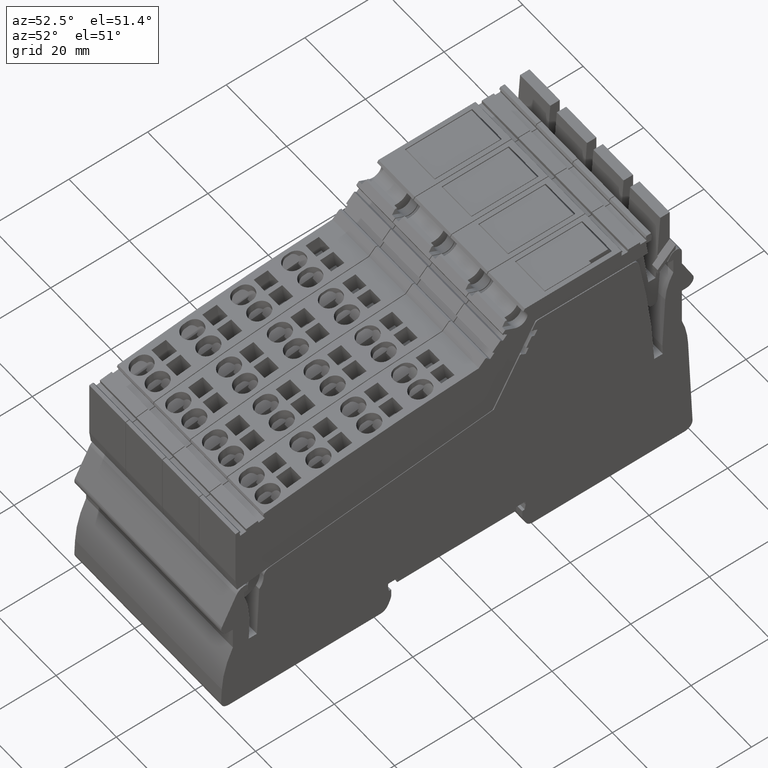
[diagram: clean part render]
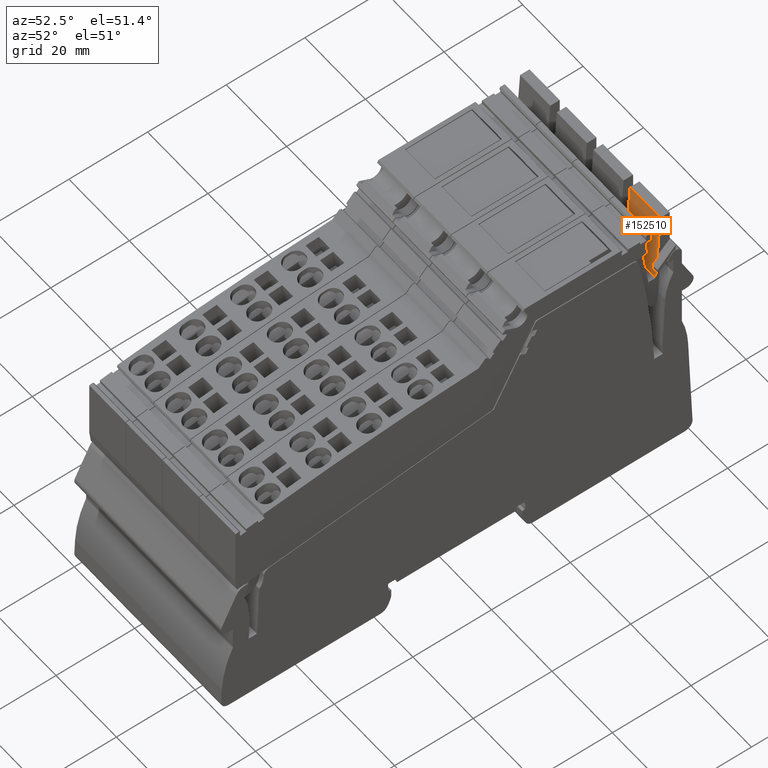
[diagram: same view with one face highlighted and labeled with its STEP entity id]
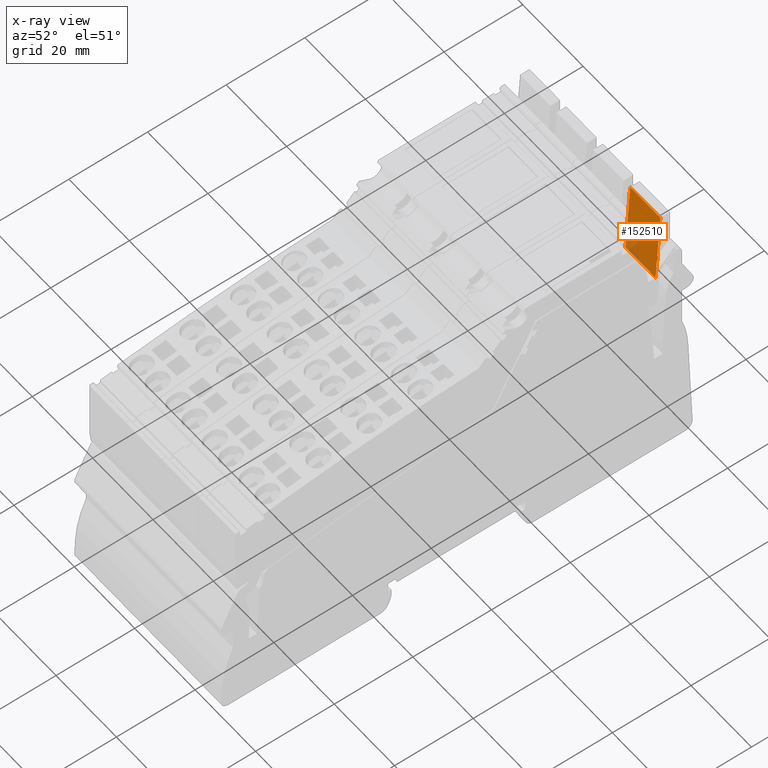
[diagram: x-ray of the same camera — body ghosted, the highlighted face saturated]
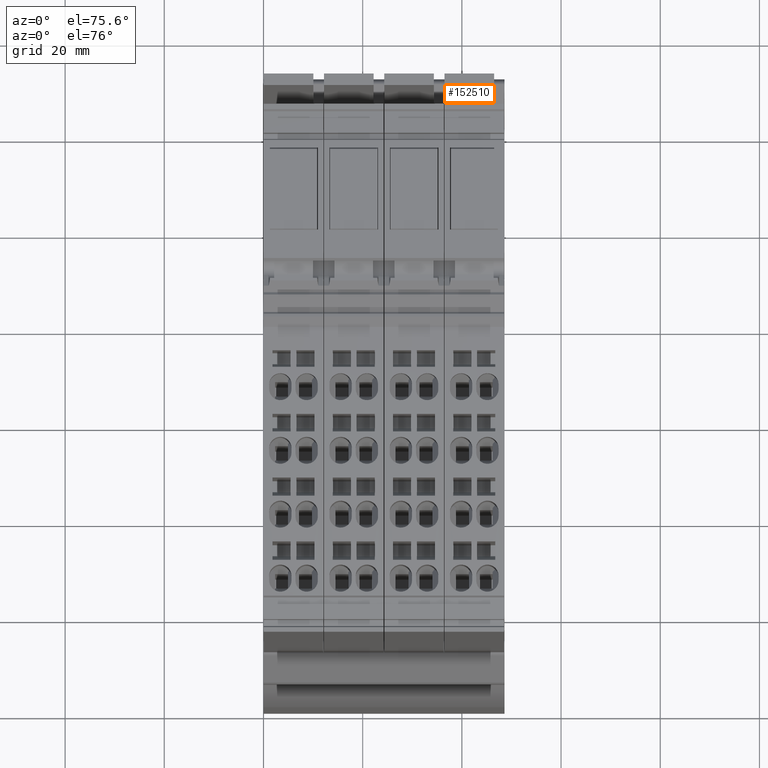
[diagram: same view with one face highlighted and labeled with its STEP entity id]
A machine part, auxiliary view. The second image highlights one B-rep face of the part: STEP entity #152510.
The next image is the same camera in x-ray: the body ghosted, the highlighted face saturated — about 11% of this face is hidden behind the body in this view.
A second angle (auxiliary view) of the same face is appended — the face is thin or edge-on in the first view.
In plain terms, the highlighted planar face has unit normal (-0, 0.9979, -0.0654).
Its self-contained STEP definition (entity closure, byte-faithful):
#3440=CARTESIAN_POINT('',(122.676285095722,84.4866197234247,-47.425));
#3450=VERTEX_POINT('',#3440);
#3480=CARTESIAN_POINT('',(117.138739477497,-1.4210854715202E-14,-47.425)
);
#3490=DIRECTION('',(0.0654031292301221,0.997858923238605,0.));
#3500=VECTOR('',#3490,1.);
#3510=LINE('',#3480,#3500);
#3520=CARTESIAN_POINT('',(121.463731033641,65.9866197234248,-47.425));
#3530=VERTEX_POINT('',#3520);
#3540=EDGE_CURVE('',#3530,#3450,#3510,.T.);
#149730=CARTESIAN_POINT('',(121.463731033641,65.9866197234248,-37.425));
#149740=VERTEX_POINT('',#149730);
#149770=CARTESIAN_POINT('',(122.011939809173,74.3506693476826,-37.425));
#149780=DIRECTION('',(0.0654031292301221,0.997858923238605,
8.00957190488259E-18));
#149790=VECTOR('',#149780,1.);
#149800=LINE('',#149770,#149790);
#149810=CARTESIAN_POINT('',(121.806540055084,71.2168746827861,-37.425));
#149820=VERTEX_POINT('',#149810);
#149830=EDGE_CURVE('',#149740,#149820,#149800,.T.);
#151980=CARTESIAN_POINT('',(121.936206899855,73.1952084357178,-37.425));
#151990=DIRECTION('',(0.997858923238605,-0.0654031292301221,
8.84030935048047E-33));
#152000=DIRECTION('',(-0.0654031292301221,-0.997858923238605,0.));
#152010=AXIS2_PLACEMENT_3D('',#151980,#151990,#152000);
#152020=PLANE('',#152010);
#152030=ORIENTED_EDGE('',*,*,#3540,.F.);
#152040=CARTESIAN_POINT('',(122.676285095722,84.4866197234247,0.));
#152050=DIRECTION('',(-8.85927774418128E-33,0.,1.));
#152060=VECTOR('',#152050,1.);
#152070=LINE('',#152040,#152060);
#152080=CARTESIAN_POINT('',(122.676285095722,84.4866197234247,-37.425));
#152090=VERTEX_POINT('',#152080);
#152100=EDGE_CURVE('',#3450,#152090,#152070,.T.);
#152110=ORIENTED_EDGE('',*,*,#152100,.F.);
#152120=CARTESIAN_POINT('',(117.138739477497,-1.4210854715202E-14,
-37.425));
#152130=DIRECTION('',(0.0654031292301221,0.997858923238605,0.));
#152140=VECTOR('',#152130,1.);
#152150=LINE('',#152120,#152140);
#152160=CARTESIAN_POINT('',(121.905734025429,72.7302822155042,-37.425));
#152170=VERTEX_POINT('',#152160);
#152180=EDGE_CURVE('',#152170,#152090,#152150,.T.);
#152190=ORIENTED_EDGE('',*,*,#152180,.T.);
#152200=CARTESIAN_POINT('',(121.905734025429,72.7302822155042,0.));
#152210=DIRECTION('',(-8.85927774418129E-33,0.,1.));
#152220=VECTOR('',#152210,1.);
#152230=LINE('',#152200,#152220);
#152240=CARTESIAN_POINT('',(121.905734025429,72.7302822155042,-37.225));
#152250=VERTEX_POINT('',#152240);
#152260=EDGE_CURVE('',#152170,#152250,#152230,.T.);
#152270=ORIENTED_EDGE('',*,*,#152260,.F.);
#152280=CARTESIAN_POINT('',(117.138739477497,-1.4210854715202E-14,
-37.225));
#152290=DIRECTION('',(0.0654031292301221,0.997858923238605,0.));
#152300=VECTOR('',#152290,1.);
#152310=LINE('',#152280,#152300);
#152320=CARTESIAN_POINT('',(121.806540055084,71.2168746827861,-37.225));
#152330=VERTEX_POINT('',#152320);
#152340=EDGE_CURVE('',#152330,#152250,#152310,.T.);
#152350=ORIENTED_EDGE('',*,*,#152340,.T.);
#152360=CARTESIAN_POINT('',(121.806540055084,71.2168746827861,0.));
#152370=DIRECTION('',(-8.85927774418128E-33,-5.18868665056828E-49,1.));
#152380=VECTOR('',#152370,1.);
#152390=LINE('',#152360,#152380);
#152400=EDGE_CURVE('',#149820,#152330,#152390,.T.);
#152410=ORIENTED_EDGE('',*,*,#152400,.T.);
#152420=ORIENTED_EDGE('',*,*,#149830,.T.);
#152430=CARTESIAN_POINT('',(121.463731033641,65.9866197234248,0.));
#152440=DIRECTION('',(8.85927774418128E-33,-6.85695893326187E-49,-1.));
#152450=VECTOR('',#152440,1.);
#152460=LINE('',#152430,#152450);
#152470=EDGE_CURVE('',#149740,#3530,#152460,.T.);
#152480=ORIENTED_EDGE('',*,*,#152470,.F.);
#152490=EDGE_LOOP('',(#152480,#152420,#152410,#152350,#152270,#152190,
#152110,#152030));
#152500=FACE_OUTER_BOUND('',#152490,.T.);
#152510=ADVANCED_FACE('',(#152500),#152020,.F.);